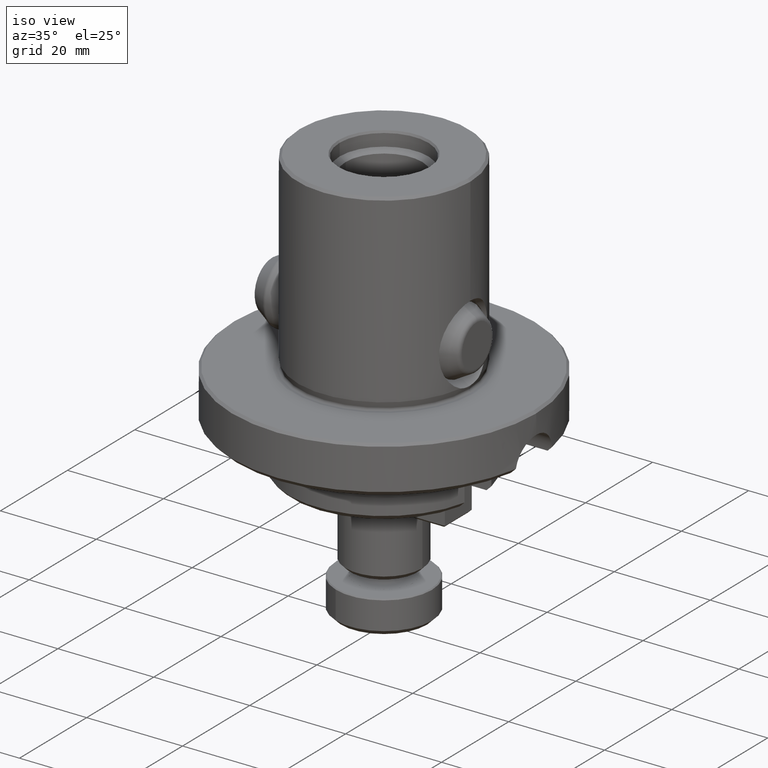
[diagram: clean part render]
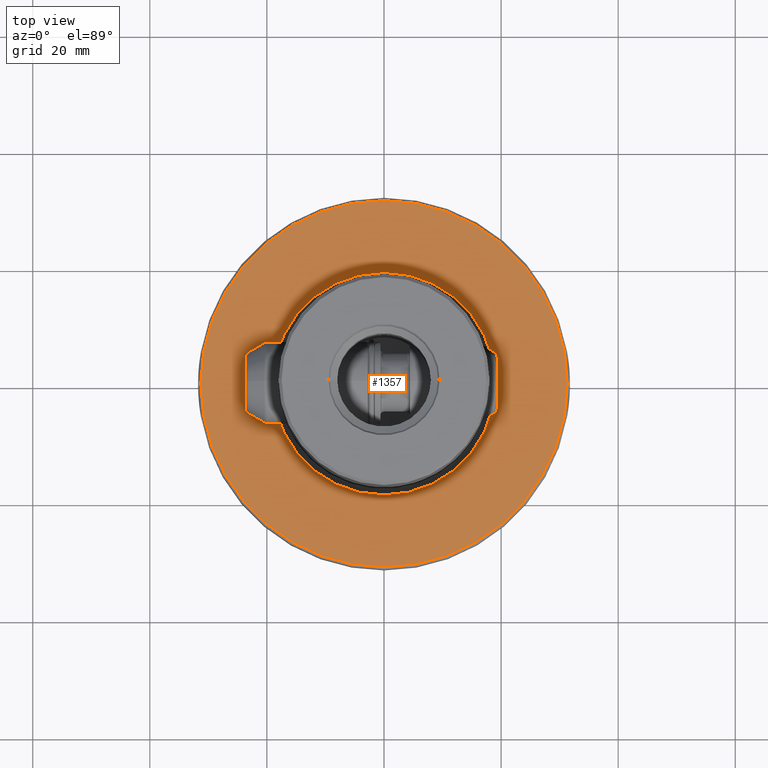
[diagram: tour spotlight — one face highlighted and labeled with its STEP entity id]
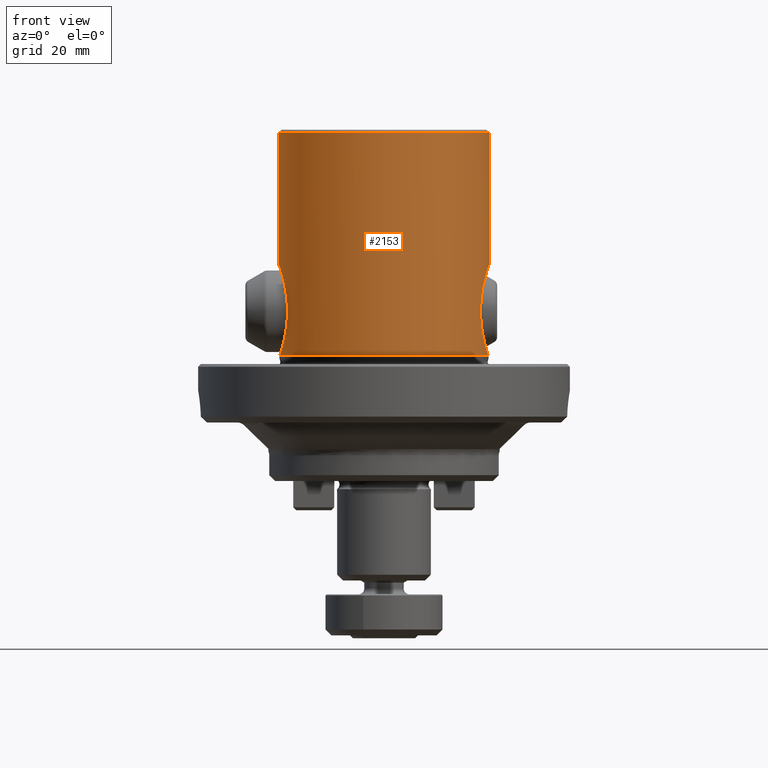
[diagram: tour spotlight — one face highlighted and labeled with its STEP entity id]
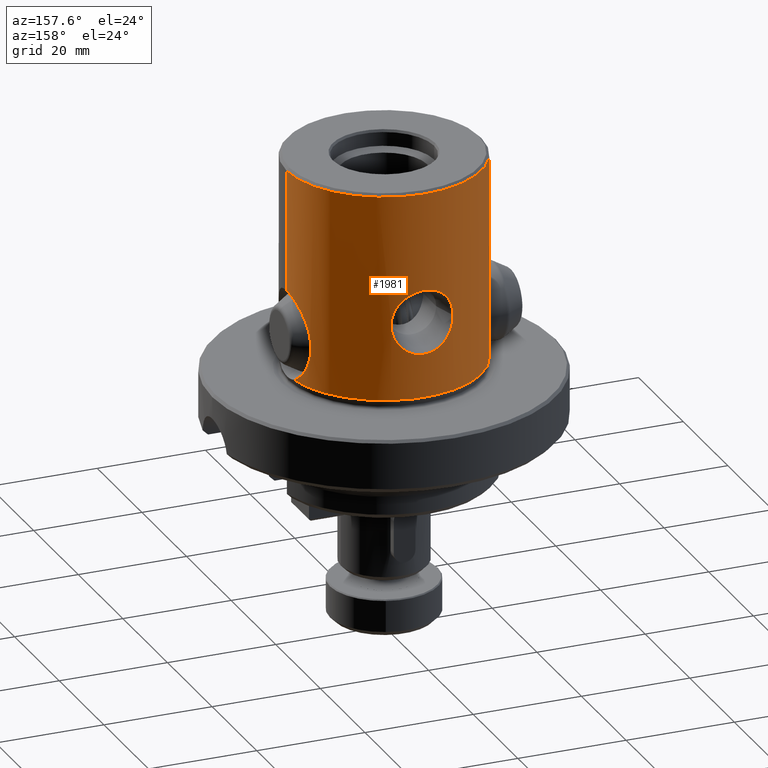
[diagram: tour spotlight — one face highlighted and labeled with its STEP entity id]
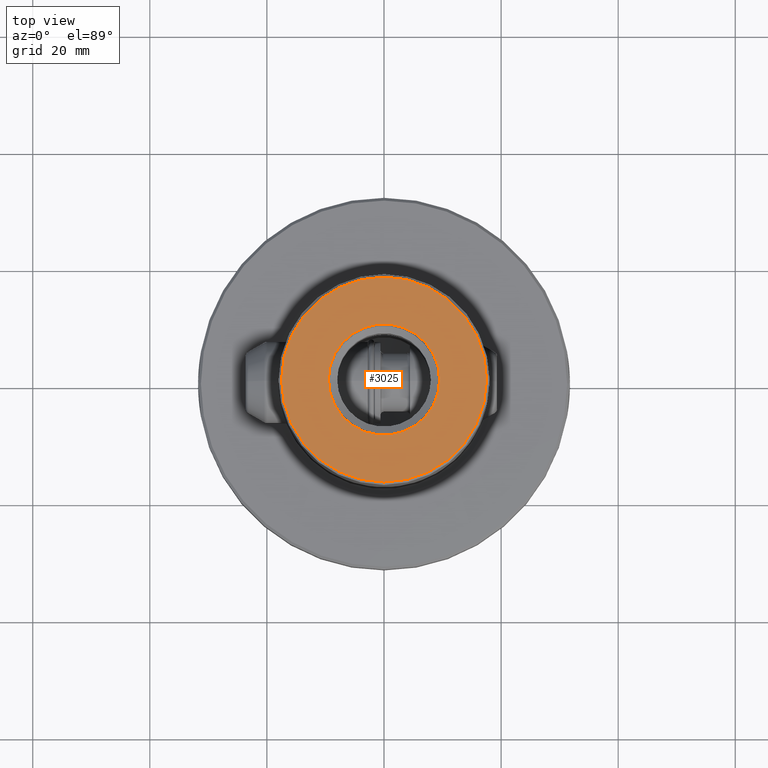
[diagram: tour spotlight — one face highlighted and labeled with its STEP entity id]
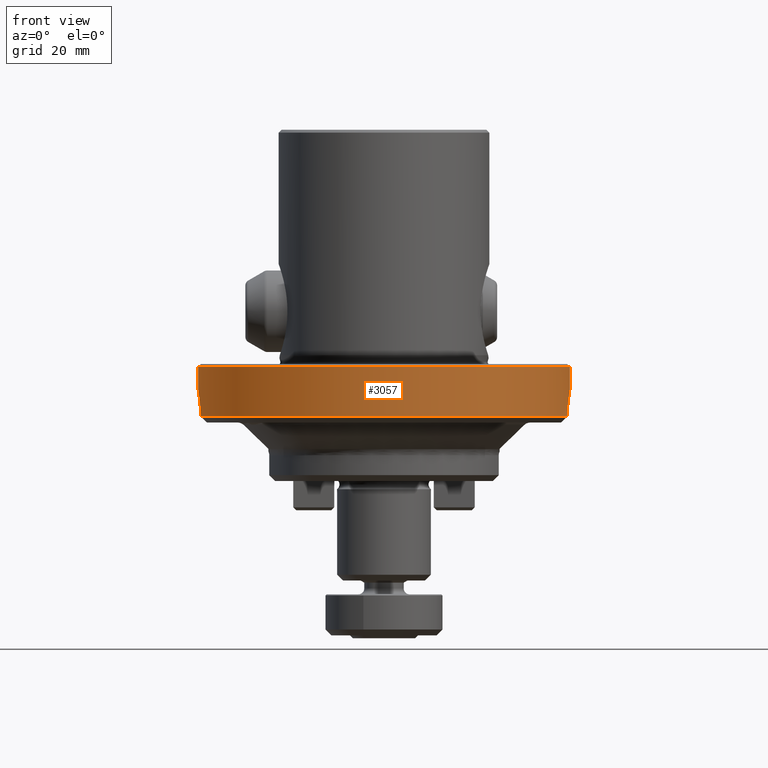
[diagram: tour spotlight — one face highlighted and labeled with its STEP entity id]
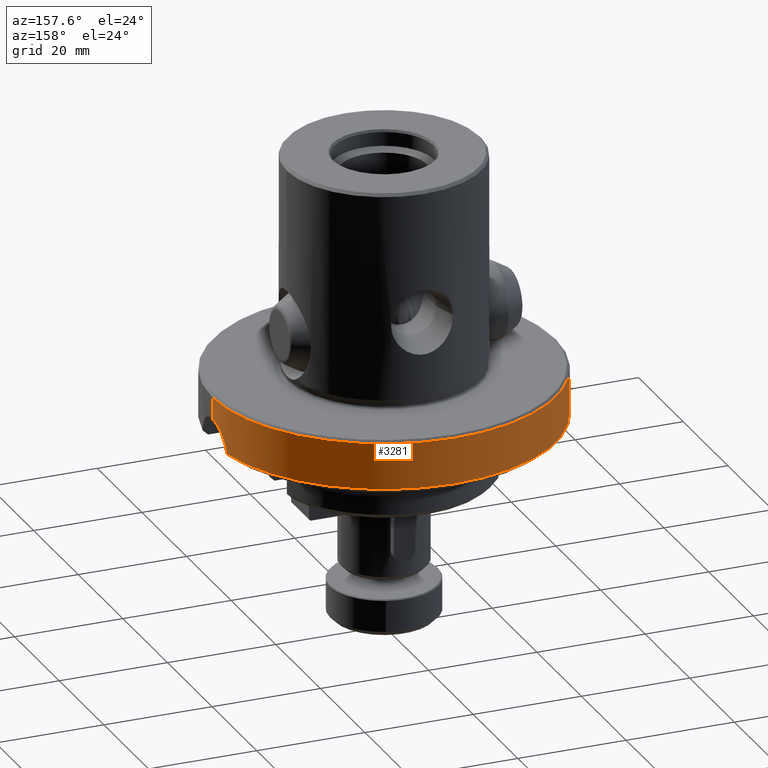
[diagram: tour spotlight — one face highlighted and labeled with its STEP entity id]
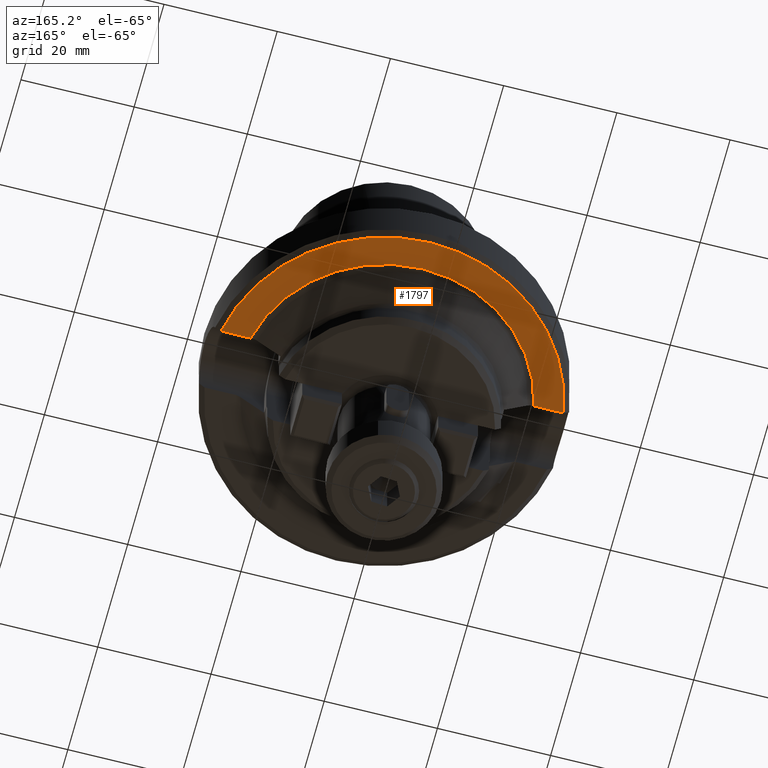
[diagram: tour spotlight — one face highlighted and labeled with its STEP entity id]
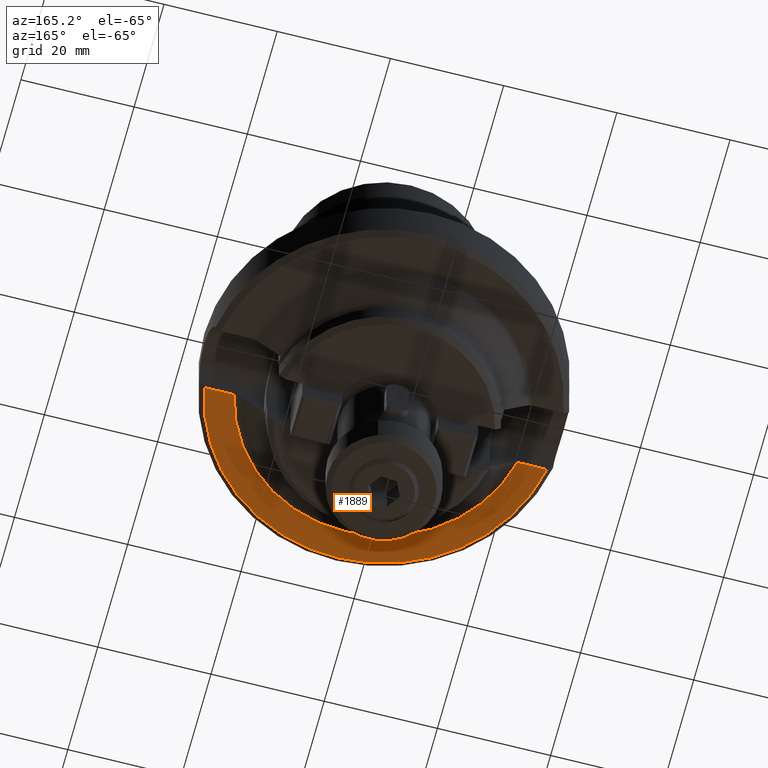
[diagram: tour spotlight — one face highlighted and labeled with its STEP entity id]
A machine part: a face-by-face anatomy tour. The part has 229 B-rep faces; the first image is the clean iso view, then the 8 largest visible faces are spotlighted one at a time (largest first), each with its STEP entity span.

Face 1 — top view, entity #1357. In plain terms, the highlighted planar face has unit normal (0, 0, -1).
Definition (entity closure, byte-faithful):
#1357=ADVANCED_FACE('NONE',(#3597,#3598),#3599,.F.);
#2247=VERTEX_POINT('NONE',#4587);
#2417=VERTEX_POINT('NONE',#4781);
#2475=VERTEX_POINT('NONE',#4848);
#2575=EDGE_CURVE('NONE',#2475,#2247,#4958,.T.);
#2647=VERTEX_POINT('NONE',#5040);
#2909=EDGE_CURVE('NONE',#2247,#2475,#5327,.T.);
#3151=EDGE_CURVE('NONE',#2417,#2647,#5596,.T.);
#3347=EDGE_CURVE('NONE',#2647,#2417,#5819,.T.);
#3597=FACE_OUTER_BOUND('',#6171,.T.);
#3598=FACE_BOUND('',#6172,.T.);
#3599=PLANE('',#6173);
#4587=CARTESIAN_POINT('',(-31.275,0.0,0.0));
#4781=CARTESIAN_POINT('',(19.0122364103075,0.0,0.0));
#4848=CARTESIAN_POINT('',(31.275,3.85904077248277E-015,0.0));
#4958=CIRCLE('',#8714,31.275);
#5040=CARTESIAN_POINT('',(-19.0122364103075,2.32825055084357E-015,0.0));
#5327=CIRCLE('',#9409,31.275);
#5596=CIRCLE('',#9809,19.0122364103075);
#5819=CIRCLE('',#10221,19.0122364103075);
#6171=EDGE_LOOP('',(#10457,#10458));
#6172=EDGE_LOOP('',(#10459,#10460));
#6173=AXIS2_PLACEMENT_3D('',#10461,#10462,#10463);
#8714=AXIS2_PLACEMENT_3D('',#12083,#12084,#12085);
#9409=AXIS2_PLACEMENT_3D('',#12520,#12521,#12522);
#9809=AXIS2_PLACEMENT_3D('',#12856,#12857,#12858);
#10221=AXIS2_PLACEMENT_3D('',#13134,#13135,#13136);
#10457=ORIENTED_EDGE('',*,*,#2909,.F.);
#10458=ORIENTED_EDGE('',*,*,#2575,.F.);
#10459=ORIENTED_EDGE('',*,*,#3151,.F.);
#10460=ORIENTED_EDGE('',*,*,#3347,.F.);
#10461=CARTESIAN_POINT('',(0.0,31.75,0.0));
#10462=DIRECTION('',(0.0,0.0,-1.0));
#10463=DIRECTION('',(0.0,1.0,0.0));
#12083=CARTESIAN_POINT('',(0.0,0.0,0.0));
#12084=DIRECTION('',(0.0,0.0,-1.0));
#12085=DIRECTION('',(-1.0,0.0,0.0));
#12520=CARTESIAN_POINT('',(0.0,0.0,0.0));
#12521=DIRECTION('',(0.0,0.0,-1.0));
#12522=DIRECTION('',(-1.0,0.0,0.0));
#12856=CARTESIAN_POINT('',(0.0,0.0,0.0));
#12857=DIRECTION('',(0.0,0.0,1.0));
#12858=DIRECTION('',(-1.0,0.0,0.0));
#13134=CARTESIAN_POINT('',(0.0,0.0,0.0));
#13135=DIRECTION('',(0.0,0.0,1.0));
#13136=DIRECTION('',(-1.0,0.0,0.0));

Face 2 — front view, entity #2153. In plain terms, the highlighted cylindrical surface (partial cylindrical patch) has radius 18 mm, axis along (-0, -0, 1).
Definition (entity closure, byte-faithful):
#1195=VERTEX_POINT('NONE',#3417);
#1561=EDGE_CURVE('NONE',#3131,#2721,#3821,.T.);
#1661=EDGE_CURVE('NONE',#2979,#3149,#3926,.T.);
#1781=VERTEX_POINT('NONE',#4065);
#1915=EDGE_CURVE('NONE',#3131,#1781,#4215,.T.);
#1939=EDGE_CURVE('NONE',#2721,#1195,#4241,.T.);
#2153=ADVANCED_FACE('NONE',(#4482),#4483,.T.);
#2721=VERTEX_POINT('NONE',#5125);
#2979=VERTEX_POINT('NONE',#5403);
#3033=EDGE_CURVE('NONE',#1195,#3149,#5463,.T.);
#3131=VERTEX_POINT('NONE',#5574);
#3149=VERTEX_POINT('NONE',#5594);
#3265=EDGE_CURVE('NONE',#2979,#1781,#5723,.T.);
#3417=CARTESIAN_POINT('',(18.0,0.0,39.5));
#3821=B_SPLINE_CURVE_WITH_KNOTS('',3,(#6596,#6597,#6598,#6599,#6600,#6601,#6602,#6603,#6604,#6605,#6606,#6607,#6608,#6609,#6610,#6611,#6612,#6613,#6614,#6615,#6616,#6617,#6618,#6619,#6620,#6621,#6622,#6623,#6624,#6625,#6626,#6627,#6628,#6629,#6630,#6631,#6632,#6633),.UNSPECIFIED.,.F.,.F.,(4,2,2,2,2,2,2,2,2,2,2,2,2,2,2,2,2,2,4),(0.0328172636496167,0.0341533887912805,0.0348214513621124,0.0354895139329443,0.0368256390746081,0.0381617642162719,0.0394978893579357,0.0408340144995995,0.0421701396412633,0.0435062647829271,0.0448423899245909,0.0461785150662547,0.0475146402079185,0.0488507653495823,0.0501868904912462,0.05152301563291,0.0528591407745738,0.0535272033454057,0.0541952659162376),.UNSPECIFIED.);
#3926=LINE('',#6904,#6905);
#4065=CARTESIAN_POINT('',(-17.804343093257,-2.64676538771197,1.48544149106436));
#4215=CIRCLE('',#7421,18.0);
#4241=LINE('',#7460,#7461);
#4482=FACE_OUTER_BOUND('',#7909,.T.);
#4483=CYLINDRICAL_SURFACE('',#7910,18.0);
#5125=CARTESIAN_POINT('',(18.0,8.53600510901965E-021,17.0800170173088));
#5403=CARTESIAN_POINT('',(-18.0,2.20429143672745E-015,17.0800170173088));
#5463=CIRCLE('',#9604,18.0);
#5574=CARTESIAN_POINT('',(17.804343093257,-2.64676538771198,1.48544149106436));
#5594=CARTESIAN_POINT('',(-18.0,2.20429143688028E-015,39.5));
#5723=B_SPLINE_CURVE_WITH_KNOTS('',3,(#10027,#10028,#10029,#10030,#10031,#10032,#10033,#10034,#10035,#10036,#10037,#10038,#10039,#10040,#10041,#10042,#10043,#10044,#10045,#10046,#10047,#10048,#10049,#10050,#10051,#10052,#10053,#10054,#10055,#10056,#10057,#10058,#10059,#10060,#10061,#10062,#10063,#10064,#10065,#10066,#10067,#10068),.UNSPECIFIED.,.F.,.F.,(4,2,2,2,2,2,2,2,2,2,2,2,2,2,2,2,2,2,2,2,4),(0.0423505653042994,0.0436910361967238,0.044361271642936,0.0450315070891481,0.0457017425353603,0.0463719779815725,0.0477124488739968,0.0490529197664211,0.0503933906588455,0.0517338615512698,0.0530743324436942,0.0544148033361185,0.0557552742285428,0.0570957451209672,0.0584362160133915,0.0591064514596037,0.0597766869058159,0.0611171577982402,0.0617873932444524,0.0624576286906646,0.063798099583089),.UNSPECIFIED.);
#6596=CARTESIAN_POINT('',(17.804343093257,-2.64676538771198,1.48544149106436));
#6597=CARTESIAN_POINT('',(17.7437444575994,-3.05440216021936,1.66611203257709));
#6598=CARTESIAN_POINT('',(17.6722912819852,-3.43931163528017,1.88445635984524));
#6599=CARTESIAN_POINT('',(17.5542332319831,-3.98542112669638,2.26508764913992));
#6600=CARTESIAN_POINT('',(17.5129362596285,-4.16262195820197,2.40133494297255));
#6601=CARTESIAN_POINT('',(17.4290760110821,-4.50085185277642,2.68657834819552));
#6602=CARTESIAN_POINT('',(17.386360907426,-4.662649062039,2.83604299216638));
#6603=CARTESIAN_POINT('',(17.2572877302605,-5.12731778915756,3.30416423296001));
#6604=CARTESIAN_POINT('',(17.1698127695481,-5.41016331820726,3.64314792815209));
#6605=CARTESIAN_POINT('',(17.0005060514856,-5.92073742572787,4.37028866876463));
#6606=CARTESIAN_POINT('',(16.9204355987016,-6.14338244050196,4.75092689163881));
#6607=CARTESIAN_POINT('',(16.7756666903962,-6.52834556015589,5.5450096948538));
#6608=CARTESIAN_POINT('',(16.7107595700963,-6.69108092549889,5.95996102399701));
#6609=CARTESIAN_POINT('',(16.6034282040785,-6.95314470100776,6.81805850656303));
#6610=CARTESIAN_POINT('',(16.5619958110133,-7.05019425746376,7.25295051267432));
#6611=CARTESIAN_POINT('',(16.5064089506085,-7.17937377960433,8.13414372090263));
#6612=CARTESIAN_POINT('',(16.4922505476307,-7.21149603580225,8.58044582571773));
#6613=CARTESIAN_POINT('',(16.4936836385412,-7.20821775697247,9.48500358318716));
#6614=CARTESIAN_POINT('',(16.5093201760162,-7.17271278779453,9.93254430864302));
#6615=CARTESIAN_POINT('',(16.5676596459575,-7.0369109178758,10.8129525999323));
#6616=CARTESIAN_POINT('',(16.6103674154364,-6.93661701040981,11.2467806041822));
#6617=CARTESIAN_POINT('',(16.7197980988396,-6.66853152942512,12.1014459335719));
#6618=CARTESIAN_POINT('',(16.7858219007469,-6.50228064934469,12.51603287325));
#6619=CARTESIAN_POINT('',(16.9319312295929,-6.11172441809785,13.3059276543521));
#6620=CARTESIAN_POINT('',(17.0123453047171,-5.88670479221077,13.6836923116285));
#6621=CARTESIAN_POINT('',(17.1815688000272,-5.37279067594269,14.4037362218238));
#6622=CARTESIAN_POINT('',(17.2703400538593,-5.08329442914027,14.7451345924122));
#6623=CARTESIAN_POINT('',(17.4417488988358,-4.45981201164653,15.3625614837354));
#6624=CARTESIAN_POINT('',(17.5252550217945,-4.12351249469231,15.6423691061109));
#6625=CARTESIAN_POINT('',(17.6804206690177,-3.39715231324559,16.1407555858179));
#6626=CARTESIAN_POINT('',(17.752354621923,-3.00357938741744,16.3599538408155));
#6627=CARTESIAN_POINT('',(17.8705487130588,-2.19341570460872,16.7114999336486));
#6628=CARTESIAN_POINT('',(17.9177827685464,-1.77329804319457,16.8470332871744));
#6629=CARTESIAN_POINT('',(17.9665380006864,-1.11865704869607,16.9858076088279));
#6630=CARTESIAN_POINT('',(17.9791457146982,-0.894756216237974,17.0213708440475));
#6631=CARTESIAN_POINT('',(17.9958543005718,-0.446651216767152,17.0684095993487));
#6632=CARTESIAN_POINT('',(18.0,-0.223087283050567,17.0800170173088));
#6633=CARTESIAN_POINT('',(18.0,8.53600510901965E-021,17.0800170173088));
#6904=CARTESIAN_POINT('',(-18.0,2.20429143688028E-015,40.0));
#6905=VECTOR('',#10778,1000.0);
#7421=AXIS2_PLACEMENT_3D('',#11162,#11163,#11164);
#7460=CARTESIAN_POINT('',(18.0,0.0,40.0));
#7461=VECTOR('',#11184,1000.0);
#7909=EDGE_LOOP('',(#11491,#11492,#11493,#11494,#11495,#11496));
#7910=AXIS2_PLACEMENT_3D('',#11497,#11498,#11499);
#9604=AXIS2_PLACEMENT_3D('',#12678,#12679,#12680);
#10027=CARTESIAN_POINT('',(-18.0,2.20429143672745E-015,17.0800170173088));
#10028=CARTESIAN_POINT('',(-18.0,-0.449532284128728,17.0800170173088));
#10029=CARTESIAN_POINT('',(-17.9831854470288,-0.894432161072405,17.03318764433));
#10030=CARTESIAN_POINT('',(-17.9340713820658,-1.55493588009812,16.8933985109919));
#10031=CARTESIAN_POINT('',(-17.9135988209318,-1.77456985074699,16.834796932722));
#10032=CARTESIAN_POINT('',(-17.8661609024974,-2.20145758045521,16.6972470698766));
#10033=CARTESIAN_POINT('',(-17.8391276646064,-2.40997328547699,16.6181083790395));
#10034=CARTESIAN_POINT('',(-17.7792925083201,-2.81765948518116,16.4400060590332));
#10035=CARTESIAN_POINT('',(-17.7464889182629,-3.01682864225033,16.3410398745958));
#10036=CARTESIAN_POINT('',(-17.6759090931639,-3.40607717366099,16.1236113756841));
#10037=CARTESIAN_POINT('',(-17.6379910477407,-3.5966933391674,16.0046720465679));
#10038=CARTESIAN_POINT('',(-17.5202626627993,-4.14489094323174,15.6259033067514));
#10039=CARTESIAN_POINT('',(-17.4359573118569,-4.48244917375162,15.342726041218));
#10040=CARTESIAN_POINT('',(-17.2633623459598,-5.10698330604871,14.7188954355043));
#10041=CARTESIAN_POINT('',(-17.1747944380222,-5.39426132818622,14.3765765310996));
#10042=CARTESIAN_POINT('',(-17.0068386722515,-5.90246199827612,13.6584704861439));
#10043=CARTESIAN_POINT('',(-16.9266592175734,-6.12629361743969,13.2800983131534));
#10044=CARTESIAN_POINT('',(-16.7805697555103,-6.51580727426742,12.4847676875533));
#10045=CARTESIAN_POINT('',(-16.7147293109781,-6.6811610033201,12.0665439132079));
#10046=CARTESIAN_POINT('',(-16.6074475137994,-6.94354199007625,11.2189299108377));
#10047=CARTESIAN_POINT('',(-16.565306382895,-7.04243534110386,10.7862140548888));
#10048=CARTESIAN_POINT('',(-16.507957548481,-7.17583505038684,9.90262461122665));
#10049=CARTESIAN_POINT('',(-16.4929748132012,-7.20983923663643,9.44884833767323));
#10050=CARTESIAN_POINT('',(-16.4929076436235,-7.20999288945108,8.55425346221535));
#10051=CARTESIAN_POINT('',(-16.5074216278891,-7.17705945741435,8.11002172409011));
#10052=CARTESIAN_POINT('',(-16.5641306830992,-7.04519169145675,7.22764089360167));
#10053=CARTESIAN_POINT('',(-16.6069061153572,-6.94484118384475,6.78591080912648));
#10054=CARTESIAN_POINT('',(-16.7143693941983,-6.68206596401146,5.93574119578572));
#10055=CARTESIAN_POINT('',(-16.7789427765968,-6.51994740817649,5.52522053269945));
#10056=CARTESIAN_POINT('',(-16.8878043257057,-6.22998585737571,4.93089168883426));
#10057=CARTESIAN_POINT('',(-16.9260936493413,-6.12549146474925,4.7363757966206));
#10058=CARTESIAN_POINT('',(-17.0059629930933,-5.90012835356388,4.3547068630629));
#10059=CARTESIAN_POINT('',(-17.0475477616526,-5.77919020808276,4.16765250843405));
#10060=CARTESIAN_POINT('',(-17.1736655500411,-5.39786144351949,3.62790294503467));
#10061=CARTESIAN_POINT('',(-17.2602917485638,-5.11712179139402,3.29285145691146));
#10062=CARTESIAN_POINT('',(-17.3886461450791,-4.65409893637874,2.82797322554881));
#10063=CARTESIAN_POINT('',(-17.4311684123279,-4.49273084927222,2.67933520808764));
#10064=CARTESIAN_POINT('',(-17.5147447319635,-4.15499454597684,2.39531562342552));
#10065=CARTESIAN_POINT('',(-17.5560048732276,-3.97759707834166,2.259292810746));
#10066=CARTESIAN_POINT('',(-17.6736572485829,-3.43222696879277,1.88022341331155));
#10067=CARTESIAN_POINT('',(-17.7444598426438,-3.04958988602489,1.66397916272028));
#10068=CARTESIAN_POINT('',(-17.804343093257,-2.64676538771197,1.48544149106436));
#10778=DIRECTION('',(-0.0,0.0,1.0));
#11162=CARTESIAN_POINT('',(0.0,0.0,1.48544149106436));
#11163=DIRECTION('',(0.0,0.0,-1.0));
#11164=DIRECTION('',(1.0,0.0,0.0));
#11184=DIRECTION('',(-0.0,0.0,1.0));
#11491=ORIENTED_EDGE('',*,*,#1661,.F.);
#11492=ORIENTED_EDGE('',*,*,#3265,.T.);
#11493=ORIENTED_EDGE('',*,*,#1915,.F.);
#11494=ORIENTED_EDGE('',*,*,#1561,.T.);
#11495=ORIENTED_EDGE('',*,*,#1939,.T.);
#11496=ORIENTED_EDGE('',*,*,#3033,.T.);
#11497=CARTESIAN_POINT('',(0.0,0.0,40.0));
#11498=DIRECTION('',(-0.0,-0.0,1.0));
#11499=DIRECTION('',(1.0,0.0,0.0));
#12678=CARTESIAN_POINT('',(0.0,0.0,39.5));
#12679=DIRECTION('',(0.0,0.0,-1.0));
#12680=DIRECTION('',(-1.0,0.0,0.0));

Face 3 — auxiliary view, entity #1981. In plain terms, the highlighted cylindrical surface (partial cylindrical patch) has radius 18 mm, axis along (-0, -0, 1).
Definition (entity closure, byte-faithful):
#1195=VERTEX_POINT('NONE',#3417);
#1449=VERTEX_POINT('NONE',#3700);
#1467=EDGE_CURVE('NONE',#1535,#1449,#3720,.T.);
#1535=VERTEX_POINT('NONE',#3792);
#1661=EDGE_CURVE('NONE',#2979,#3149,#3926,.T.);
#1713=EDGE_CURVE('NONE',#2091,#2979,#3988,.T.);
#1843=EDGE_CURVE('NONE',#2091,#3317,#4134,.T.);
#1939=EDGE_CURVE('NONE',#2721,#1195,#4241,.T.);
#1975=EDGE_CURVE('NONE',#2721,#3317,#4282,.T.);
#1981=ADVANCED_FACE('NONE',(#4288,#4289),#4290,.T.);
#2091=VERTEX_POINT('NONE',#4412);
#2107=EDGE_CURVE('NONE',#1449,#1535,#4431,.T.);
#2721=VERTEX_POINT('NONE',#5125);
#2979=VERTEX_POINT('NONE',#5403);
#3149=VERTEX_POINT('NONE',#5594);
#3159=EDGE_CURVE('NONE',#3149,#1195,#5606,.T.);
#3317=VERTEX_POINT('NONE',#5784);
#3417=CARTESIAN_POINT('',(18.0,0.0,39.5));
#3700=CARTESIAN_POINT('',(5.72860766398983,17.064086680279,15.5));
#3720=B_SPLINE_CURVE_WITH_KNOTS('',3,(#6399,#6400,#6401,#6402,#6403,#6404,#6405,#6406,#6407,#6408,#6409,#6410,#6411,#6412,#6413,#6414,#6415,#6416,#6417,#6418,#6419,#6420,#6421,#6422,#6423,#6424,#6425,#6426,#6427,#6428,#6429,#6430,#6431,#6432,#6433,#6434,#6435,#6436,#6437,#6438,#6439),.UNSPECIFIED.,.F.,.F.,(4,2,2,2,2,2,2,2,2,2,1,2,2,2,2,2,2,2,2,2,4),(0.0324181290857824,0.0335691108776089,0.0347200926694353,0.0358710744612617,0.0364465653571749,0.0370220562530882,0.0381730380449146,0.039324019836741,0.0404750016285674,0.0410504925244806,0.0416259834203939,0.0422014743163071,0.0427769652122203,0.0439279470040467,0.0450789287958731,0.0462299105876996,0.047380892379526,0.0479563832754392,0.0485318741713524,0.0496828559631789,0.0508338377550053),.UNSPECIFIED.);
#3792=CARTESIAN_POINT('',(-5.72860766398983,17.0640866802791,15.5));
#3926=LINE('',#6904,#6905);
#3988=B_SPLINE_CURVE_WITH_KNOTS('',3,(#7033,#7034,#7035,#7036,#7037,#7038,#7039,#7040,#7041,#7042,#7043,#7044,#7045,#7046,#7047,#7048,#7049,#7050,#7051,#7052,#7053,#7054,#7055,#7056,#7057,#7058,#7059,#7060,#7061,#7062,#7063,#7064,#7065,#7066,#7067,#7068,#7069,#7070,#7071,#7072),.UNSPECIFIED.,.F.,.F.,(4,2,2,2,2,2,2,2,2,2,2,2,2,2,2,2,2,2,2,4),(0.0209192149140883,0.0222586743134765,0.0235981337128647,0.0249375931122529,0.0262770525116411,0.0276165119110293,0.0289559713104175,0.0302954307098057,0.0316348901091939,0.0329743495085821,0.0343138089079703,0.0356532683073585,0.0363229980070526,0.0369927277067467,0.0383321871061349,0.039001916805829,0.039671646505523,0.0410111059049112,0.0416808356046054,0.0423505653042994),.UNSPECIFIED.);
#4134=CIRCLE('',#7300,18.0);
#4241=LINE('',#7460,#7461);
#4282=B_SPLINE_CURVE_WITH_KNOTS('',3,(#7524,#7525,#7526,#7527,#7528,#7529,#7530,#7531,#7532,#7533,#7534,#7535,#7536,#7537,#7538,#7539,#7540,#7541,#7542,#7543,#7544,#7545,#7546,#7547,#7548,#7549,#7550,#7551,#7552,#7553,#7554,#7555,#7556,#7557,#7558,#7559,#7560,#7561),.UNSPECIFIED.,.F.,.F.,(4,2,2,2,2,2,2,2,2,2,2,2,2,2,2,2,2,2,4),(0.00599003677657072,0.0073276405191072,0.00866524426164368,0.0100028480041802,0.0113404517467166,0.0126780554892531,0.0140156592317896,0.0166908667168626,0.018028470459399,0.0193660742019355,0.0200348760732037,0.020703677944472,0.0220412816870085,0.0227100835582767,0.0233788854295449,0.0247164891720814,0.0253852910433497,0.0260540929146179,0.0273916966571544),.UNSPECIFIED.);
#4288=FACE_OUTER_BOUND('',#7571,.T.);
#4289=FACE_BOUND('',#7572,.T.);
#4290=CYLINDRICAL_SURFACE('',#7573,18.0);
#4412=CARTESIAN_POINT('',(-17.804343093257,2.64676538771197,1.48544149106436));
#4431=B_SPLINE_CURVE_WITH_KNOTS('',3,(#7758,#7759,#7760,#7761,#7762,#7763,#7764,#7765,#7766,#7767,#7768,#7769,#7770,#7771,#7772,#7773,#7774,#7775,#7776,#7777,#7778,#7779,#7780,#7781,#7782,#7783,#7784,#7785,#7786,#7787,#7788,#7789,#7790,#7791,#7792,#7793,#7794,#7795,#7796,#7797,#7798,#7799,#7800,#7801,#7802),.UNSPECIFIED.,.F.,.F.,(4,2,2,2,2,2,2,2,2,2,2,2,1,2,2,2,2,2,2,2,2,2,4),(0.0139958650551116,0.0151472565570286,0.015722952307987,0.0162986480589455,0.0174500395608624,0.0186014310627794,0.0191771268137378,0.0197528225646963,0.0209042140666132,0.0220556055685301,0.0232069970704471,0.0237826928214055,0.024358388572364,0.0249340843233224,0.0255097800742809,0.0266611715761978,0.0272368673271563,0.0278125630781148,0.0283882588290732,0.0289639545800317,0.0301153460819486,0.0312667375838655,0.0324181290857824),.UNSPECIFIED.);
#5125=CARTESIAN_POINT('',(18.0,8.53600510901965E-021,17.0800170173088));
#5403=CARTESIAN_POINT('',(-18.0,2.20429143672745E-015,17.0800170173088));
#5594=CARTESIAN_POINT('',(-18.0,2.20429143688028E-015,39.5));
#5606=CIRCLE('',#9820,18.0);
#5784=CARTESIAN_POINT('',(17.804343093257,2.64676538771197,1.48544149106436));
#6399=CARTESIAN_POINT('',(-5.72860766398983,17.0640866802791,15.5));
#6400=CARTESIAN_POINT('',(-5.72860766398983,17.0640866802791,15.8854121907871));
#6401=CARTESIAN_POINT('',(-5.69215038779191,17.076445500352,16.2754555447811));
#6402=CARTESIAN_POINT('',(-5.55038952298575,17.1230471326473,17.0291784922072));
#6403=CARTESIAN_POINT('',(-5.44539591953446,17.1571903711619,17.3972544090195));
#6404=CARTESIAN_POINT('',(-5.16504681958713,17.2436599799533,18.1155979663764));
#6405=CARTESIAN_POINT('',(-4.99210571300113,17.2951680005943,18.4585642043972));
#6406=CARTESIAN_POINT('',(-4.68896137731568,17.3788558342223,18.9409351945091));
#6407=CARTESIAN_POINT('',(-4.5803742878751,17.4078887753267,19.0968489403871));
#6408=CARTESIAN_POINT('',(-4.34770875304212,17.4674511257336,19.3987983045587));
#6409=CARTESIAN_POINT('',(-4.22289694324471,17.4981482279224,19.5455701478436));
#6410=CARTESIAN_POINT('',(-3.8303994987248,17.5897765670462,19.9636947759355));
#6411=CARTESIAN_POINT('',(-3.54516979141796,17.6502313606252,20.2135040262341));
#6412=CARTESIAN_POINT('',(-2.92646153621304,17.7632969577904,20.6554545896568));
#6413=CARTESIAN_POINT('',(-2.5889650675446,17.816314461341,20.8488156448775));
#6414=CARTESIAN_POINT('',(-1.89072690160258,17.9038809449212,21.1583172941291));
#6415=CARTESIAN_POINT('',(-1.52809551778285,17.9389955986615,21.2767877948138));
#6416=CARTESIAN_POINT('',(-0.96274161900113,17.9752270729777,21.3977932825464));
#6417=CARTESIAN_POINT('',(-0.7697047107021,17.9845616104687,21.4286101798463));
#6418=CARTESIAN_POINT('',(-0.385706528405208,17.9968922910698,21.4692201992943));
#6419=CARTESIAN_POINT('',(-0.00192390553090262,18.0030642647076,21.4894073594712));
#6420=CARTESIAN_POINT('',(0.381435074770861,17.996978760759,21.4695034549815));
#6421=CARTESIAN_POINT('',(0.76457996860089,17.9847756367181,21.4293165441945));
#6422=CARTESIAN_POINT('',(0.957224945841079,17.9755291213116,21.3987955899906));
#6423=CARTESIAN_POINT('',(1.52470143822351,17.9393141640509,21.2778644325458));
#6424=CARTESIAN_POINT('',(1.88857746709879,17.9041296601793,21.1591844185779));
#6425=CARTESIAN_POINT('',(2.58902431524085,17.8163278155976,20.848874763255));
#6426=CARTESIAN_POINT('',(2.92601294522139,17.7633747214886,20.655751611046));
#6427=CARTESIAN_POINT('',(3.54515208262168,17.6502388075262,20.2135400706262));
#6428=CARTESIAN_POINT('',(3.83187496037504,17.5894689082248,19.9624484108803));
#6429=CARTESIAN_POINT('',(4.35693313934606,17.4668204263004,19.4024540326997));
#6430=CARTESIAN_POINT('',(4.58834533819629,17.4066392788371,19.1011587918295));
#6431=CARTESIAN_POINT('',(4.89165359438166,17.3228960077147,18.6183455356681));
#6432=CARTESIAN_POINT('',(4.98539418474849,17.2960668576454,18.4522222198389));
#6433=CARTESIAN_POINT('',(5.15793002444585,17.2454005979676,18.10930693514));
#6434=CARTESIAN_POINT('',(5.2366277418017,17.2215862499952,17.93241796718));
#6435=CARTESIAN_POINT('',(5.44538614823855,17.1571845588225,17.3968082476174));
#6436=CARTESIAN_POINT('',(5.55033152101227,17.1230664127526,17.0295706125262));
#6437=CARTESIAN_POINT('',(5.69230097906624,17.076395782846,16.2745710853118));
#6438=CARTESIAN_POINT('',(5.72860766398983,17.064086680279,15.884218816964));
#6439=CARTESIAN_POINT('',(5.72860766398983,17.064086680279,15.5));
#6904=CARTESIAN_POINT('',(-18.0,2.20429143688028E-015,40.0));
#6905=VECTOR('',#10778,1000.0);
#7033=CARTESIAN_POINT('',(-17.804343093257,2.64676538771197,1.48544149106436));
#7034=CARTESIAN_POINT('',(-17.7433386908421,3.05713168456496,1.66732179743361));
#7035=CARTESIAN_POINT('',(-17.6717306665409,3.44199183331901,1.8862443408451));
#7036=CARTESIAN_POINT('',(-17.5150637324848,4.1665231282681,2.39139368991131));
#7037=CARTESIAN_POINT('',(-17.429263812792,4.50826648229476,2.6803958795304));
#7038=CARTESIAN_POINT('',(-17.2568506125031,5.12882156728383,3.30579702744187));
#7039=CARTESIAN_POINT('',(-17.1698397573161,5.41000698886052,3.6431760182783));
#7040=CARTESIAN_POINT('',(-17.0014750263649,5.91788981304343,4.36598395452532));
#7041=CARTESIAN_POINT('',(-16.9202755898242,6.14382412480841,4.75170961943586));
#7042=CARTESIAN_POINT('',(-16.7754750266129,6.52883898895238,5.54615618401007));
#7043=CARTESIAN_POINT('',(-16.7111160738901,6.69017855091145,5.9578584602763));
#7044=CARTESIAN_POINT('',(-16.6042357918918,6.95120444565992,6.81086244586312));
#7045=CARTESIAN_POINT('',(-16.5620115966905,7.0501580617162,7.25259624342691));
#7046=CARTESIAN_POINT('',(-16.5063540914024,7.17950077883806,8.13511747807436));
#7047=CARTESIAN_POINT('',(-16.4923578698293,7.21125052621831,8.57973395439264));
#7048=CARTESIAN_POINT('',(-16.4935617576729,7.20849657031436,9.47577056664033));
#7049=CARTESIAN_POINT('',(-16.5091660919233,7.17306875113836,9.92972309694919));
#7050=CARTESIAN_POINT('',(-16.567608644656,7.03703234018347,10.8126771058935));
#7051=CARTESIAN_POINT('',(-16.6102821610932,6.93679237605055,11.245386593994));
#7052=CARTESIAN_POINT('',(-16.7186888823563,6.67128203530171,12.0935030266524));
#7053=CARTESIAN_POINT('',(-16.7851041266434,6.50415156489058,12.5118885308949));
#7054=CARTESIAN_POINT('',(-16.931643419161,6.1125411448686,13.304633811474));
#7055=CARTESIAN_POINT('',(-17.0119281123323,5.88780893351022,13.6816183283563));
#7056=CARTESIAN_POINT('',(-17.1378783237751,5.50555397699917,14.2179803792184));
#7057=CARTESIAN_POINT('',(-17.1807845910301,5.37056580034166,14.3918877066155));
#7058=CARTESIAN_POINT('',(-17.267592739349,5.08454296541603,14.7295615087826));
#7059=CARTESIAN_POINT('',(-17.31142870261,4.93362762193803,14.89300235213));
#7060=CARTESIAN_POINT('',(-17.4404224644569,4.46504705588403,15.3580489854463));
#7061=CARTESIAN_POINT('',(-17.5239415664024,4.12894350689577,15.6379962463303));
#7062=CARTESIAN_POINT('',(-17.6400192333076,3.58662753502423,16.0110624369827));
#7063=CARTESIAN_POINT('',(-17.677176895944,3.3994574238089,16.1275597334814));
#7064=CARTESIAN_POINT('',(-17.7474160217713,3.01133165509207,16.3438517964003));
#7065=CARTESIAN_POINT('',(-17.7806206552348,2.80930279286648,16.4439972915223));
#7066=CARTESIAN_POINT('',(-17.8702857480854,2.19624669635731,16.7107735619919));
#7067=CARTESIAN_POINT('',(-17.9176191319791,1.77462981052516,16.8465620636818));
#7068=CARTESIAN_POINT('',(-17.9663250315383,1.12194538275606,16.9852041284789));
#7069=CARTESIAN_POINT('',(-17.9788408562157,0.900988371910374,17.0205110904897));
#7070=CARTESIAN_POINT('',(-17.9957304336674,0.451868053998719,17.0680623484409));
#7071=CARTESIAN_POINT('',(-18.0,0.22459653794335,17.0800170173088));
#7072=CARTESIAN_POINT('',(-18.0,2.20429143672745E-015,17.0800170173088));
#7300=AXIS2_PLACEMENT_3D('',#11070,#11071,#11072);
#7460=CARTESIAN_POINT('',(18.0,0.0,40.0));
#7461=VECTOR('',#11184,1000.0);
#7524=CARTESIAN_POINT('',(18.0,8.53600510901965E-021,17.0800170173088));
#7525=CARTESIAN_POINT('',(18.0,0.446668317833083,17.0800170173088));
#7526=CARTESIAN_POINT('',(17.9833676439074,0.89181205361602,17.0337051536375));
#7527=CARTESIAN_POINT('',(17.9175935596395,1.77670526156504,16.8465001648662));
#7528=CARTESIAN_POINT('',(17.8697017710781,2.20076072721564,16.7090645309619));
#7529=CARTESIAN_POINT('',(17.7503574236814,3.01569237444522,16.3539278659984));
#7530=CARTESIAN_POINT('',(17.6781580587956,3.40899115093411,16.1337568014171));
#7531=CARTESIAN_POINT('',(17.5221513123086,4.13675070646826,15.6321220682217));
#7532=CARTESIAN_POINT('',(17.437983423297,4.47467209977876,15.3497554156376));
#7533=CARTESIAN_POINT('',(17.2647961552577,5.10223186352001,14.7243658506985));
#7534=CARTESIAN_POINT('',(17.1769617811598,5.3873704328791,14.3852204935148));
#7535=CARTESIAN_POINT('',(17.0090179668046,5.89619233212436,13.6683949382677));
#7536=CARTESIAN_POINT('',(16.9283544992003,6.12167490155118,13.2887686481633));
#7537=CARTESIAN_POINT('',(16.7072403193612,6.71151842094012,12.0866587086983));
#7538=CARTESIAN_POINT('',(16.5949847106844,6.97338523350817,11.240561475862));
#7539=CARTESIAN_POINT('',(16.5078854974417,7.17601011663486,9.90296113476767));
#7540=CARTESIAN_POINT('',(16.4931351186935,7.20947253177145,9.45494174821796));
#7541=CARTESIAN_POINT('',(16.4927510501938,7.21035110283671,8.56284365411167));
#7542=CARTESIAN_POINT('',(16.5070277836197,7.17796895366757,8.1174252252896));
#7543=CARTESIAN_POINT('',(16.54978244596,7.07855932578423,7.45026690959342));
#7544=CARTESIAN_POINT('',(16.5676321606771,7.03679318469409,7.22799965061736));
#7545=CARTESIAN_POINT('',(16.6093951148458,6.93764280246507,6.79185469001753));
#7546=CARTESIAN_POINT('',(16.6333635853078,6.88013096181156,6.57693832720394));
#7547=CARTESIAN_POINT('',(16.7135656635661,6.68406071640208,5.94143116611566));
#7548=CARTESIAN_POINT('',(16.7781004189015,6.52215662151048,5.53001776782705));
#7549=CARTESIAN_POINT('',(16.8876734774143,6.23035148974776,4.93150760699726));
#7550=CARTESIAN_POINT('',(16.9264750431089,6.12443512791166,4.73448909488459));
#7551=CARTESIAN_POINT('',(17.0062510863744,5.89929546710243,4.35339485036975));
#7552=CARTESIAN_POINT('',(17.0473388831798,5.77979089309621,4.16860480586671));
#7553=CARTESIAN_POINT('',(17.1728550219361,5.40037345552409,3.63125592575354));
#7554=CARTESIAN_POINT('',(17.2595502046021,5.11975795075693,3.29556333563188));
#7555=CARTESIAN_POINT('',(17.3887848714146,4.65361788080453,2.8274577519958));
#7556=CARTESIAN_POINT('',(17.4319487906876,4.48973437029712,2.67662141158931));
#7557=CARTESIAN_POINT('',(17.5158514132511,4.15036174638924,2.39161798243767));
#7558=CARTESIAN_POINT('',(17.5564914024914,3.97538019101962,2.25771670676456));
#7559=CARTESIAN_POINT('',(17.6731848703034,3.43433962439748,1.88176251245699));
#7560=CARTESIAN_POINT('',(17.7440503925251,3.05234418772,1.66519990925815));
#7561=CARTESIAN_POINT('',(17.804343093257,2.64676538771197,1.48544149106436));
#7571=EDGE_LOOP('',(#11245,#11246,#11247,#11248,#11249,#11250));
#7572=EDGE_LOOP('',(#11251,#11252));
#7573=AXIS2_PLACEMENT_3D('',#11253,#11254,#11255);
#7758=CARTESIAN_POINT('',(5.72860766398983,17.064086680279,15.5));
#7759=CARTESIAN_POINT('',(5.72860766398983,17.0640866802791,15.1156444142988));
#7760=CARTESIAN_POINT('',(5.69345036717081,17.0760127607151,14.7335935552291));
#7761=CARTESIAN_POINT('',(5.58692294863655,17.111039979729,14.1640219920753));
#7762=CARTESIAN_POINT('',(5.54218703026235,17.125631199959,13.9744569313998));
#7763=CARTESIAN_POINT('',(5.43646042085127,17.1594865648112,13.6046550071098));
#7764=CARTESIAN_POINT('',(5.37531975235128,17.1788007749545,13.4233788196815));
#7765=CARTESIAN_POINT('',(5.16743969297624,17.2429290157395,12.890155325448));
#7766=CARTESIAN_POINT('',(4.99560518817663,17.2941850345808,12.5473051212285));
#7767=CARTESIAN_POINT('',(4.58706965240995,17.4070014422472,11.89663317435));
#7768=CARTESIAN_POINT('',(4.35528138479995,17.4671801620193,11.5960155186332));
#7769=CARTESIAN_POINT('',(3.96646746918971,17.5580423311987,11.1809850901605));
#7770=CARTESIAN_POINT('',(3.8299560838045,17.5884337253518,11.0486701119239));
#7771=CARTESIAN_POINT('',(3.54248349674249,17.648579976595,10.7964751043411));
#7772=CARTESIAN_POINT('',(3.39121503902631,17.6783643298861,10.6765322425713));
#7773=CARTESIAN_POINT('',(2.92549067546018,17.7634772382051,10.3438360169525));
#7774=CARTESIAN_POINT('',(2.59608717008712,17.8152787641525,10.1549272450597));
#7775=CARTESIAN_POINT('',(1.8978135890498,17.9031318383229,9.84424981593913));
#7776=CARTESIAN_POINT('',(1.52559512761652,17.9391661178496,9.72264140800821));
#7777=CARTESIAN_POINT('',(0.775809117382515,17.9871966051021,9.56223230370012));
#7778=CARTESIAN_POINT('',(0.394417042936566,17.9998649912681,9.52105771612313));
#7779=CARTESIAN_POINT('',(-0.187893099361949,18.0000658973828,9.52039908680849));
#7780=CARTESIAN_POINT('',(-0.382664769077278,17.9969532202114,9.53058024482698));
#7781=CARTESIAN_POINT('',(-0.765914658549691,17.984719410427,9.57086903049999));
#7782=CARTESIAN_POINT('',(-1.14512107589828,17.9664881122742,9.63104986619656));
#7783=CARTESIAN_POINT('',(-1.51640697539804,17.9369601595396,9.7303303413225));
#7784=CARTESIAN_POINT('',(-1.88370152992358,17.9021143563019,9.84942557414092));
#7785=CARTESIAN_POINT('',(-2.06515656011877,17.8820122018974,9.91897347349092));
#7786=CARTESIAN_POINT('',(-2.59121077529639,17.8160196100147,10.1522340883738));
#7787=CARTESIAN_POINT('',(-2.92204291354633,17.7640681747291,10.3415905403277));
#7788=CARTESIAN_POINT('',(-3.38972217100508,17.6786565335054,10.6753581728256));
#7789=CARTESIAN_POINT('',(-3.54105722362161,17.6488645005162,10.7953190551681));
#7790=CARTESIAN_POINT('',(-3.82813449883181,17.5888285760421,11.0469779393347));
#7791=CARTESIAN_POINT('',(-3.9646991771523,17.5584434975127,11.1792044775723));
#7792=CARTESIAN_POINT('',(-4.22437378862682,17.4977839658232,11.4561755778448));
#7793=CARTESIAN_POINT('',(-4.34748261703124,17.4675079753635,11.600920834964));
#7794=CARTESIAN_POINT('',(-4.58030787551554,17.4079068167389,11.9030522716442));
#7795=CARTESIAN_POINT('',(-4.69053309975926,17.3784370754461,12.0612956969172));
#7796=CARTESIAN_POINT('',(-4.99623464314813,17.2939973161588,12.5485557485968));
#7797=CARTESIAN_POINT('',(-5.16694770344116,17.2430783925895,12.8890213026538));
#7798=CARTESIAN_POINT('',(-5.44456356011478,17.1574423695069,13.6008651905809));
#7799=CARTESIAN_POINT('',(-5.55188948586754,17.1225598961674,13.9764746370474));
#7800=CARTESIAN_POINT('',(-5.69322985199311,17.0760846833664,14.7326484200113));
#7801=CARTESIAN_POINT('',(-5.72860766398983,17.0640866802791,15.1144506156754));
#7802=CARTESIAN_POINT('',(-5.72860766398983,17.0640866802791,15.5));
#9820=AXIS2_PLACEMENT_3D('',#12879,#12880,#12881);
#10778=DIRECTION('',(-0.0,0.0,1.0));
#11070=CARTESIAN_POINT('',(0.0,0.0,1.48544149106436));
#11071=DIRECTION('',(0.0,0.0,-1.0));
#11072=DIRECTION('',(1.0,0.0,0.0));
#11184=DIRECTION('',(-0.0,0.0,1.0));
#11245=ORIENTED_EDGE('',*,*,#1713,.T.);
#11246=ORIENTED_EDGE('',*,*,#1661,.T.);
#11247=ORIENTED_EDGE('',*,*,#3159,.T.);
#11248=ORIENTED_EDGE('',*,*,#1939,.F.);
#11249=ORIENTED_EDGE('',*,*,#1975,.T.);
#11250=ORIENTED_EDGE('',*,*,#1843,.F.);
#11251=ORIENTED_EDGE('',*,*,#2107,.F.);
#11252=ORIENTED_EDGE('',*,*,#1467,.F.);
#11253=CARTESIAN_POINT('',(0.0,0.0,40.0));
#11254=DIRECTION('',(-0.0,-0.0,1.0));
#11255=DIRECTION('',(1.0,0.0,0.0));
#12879=CARTESIAN_POINT('',(0.0,0.0,39.5));
#12880=DIRECTION('',(0.0,0.0,-1.0));
#12881=DIRECTION('',(-1.0,0.0,0.0));

Face 4 — top view, entity #3025. In plain terms, the highlighted planar face has unit normal (0, 0, -1).
Definition (entity closure, byte-faithful):
#1837=VERTEX_POINT('NONE',#4127);
#2043=EDGE_CURVE('NONE',#2113,#1837,#4356,.T.);
#2113=VERTEX_POINT('NONE',#4438);
#2137=VERTEX_POINT('NONE',#4466);
#2549=EDGE_CURVE('NONE',#2137,#2971,#4931,.T.);
#2685=EDGE_CURVE('NONE',#1837,#2113,#5083,.T.);
#2739=EDGE_CURVE('NONE',#2971,#2137,#5144,.T.);
#2971=VERTEX_POINT('NONE',#5394);
#3025=ADVANCED_FACE('NONE',(#5453,#5454),#5455,.F.);
#4127=CARTESIAN_POINT('',(17.5,2.17367627803472E-015,40.0));
#4356=CIRCLE('',#7671,17.5);
#4438=CARTESIAN_POINT('',(-17.5,0.0,40.0));
#4466=CARTESIAN_POINT('',(9.5,0.0,40.0));
#4931=CIRCLE('',#8669,9.5);
#5083=CIRCLE('',#8998,17.5);
#5144=CIRCLE('',#9073,9.5);
#5394=CARTESIAN_POINT('',(-9.5,1.16337603613126E-015,40.0));
#5453=FACE_OUTER_BOUND('',#9591,.T.);
#5454=FACE_BOUND('',#9592,.T.);
#5455=PLANE('',#9593);
#7671=AXIS2_PLACEMENT_3D('',#11319,#11320,#11321);
#8669=AXIS2_PLACEMENT_3D('',#12065,#12066,#12067);
#8998=AXIS2_PLACEMENT_3D('',#12271,#12272,#12273);
#9073=AXIS2_PLACEMENT_3D('',#12348,#12349,#12350);
#9591=EDGE_LOOP('',(#12670,#12671));
#9592=EDGE_LOOP('',(#12672,#12673));
#9593=AXIS2_PLACEMENT_3D('',#12674,#12675,#12676);
#11319=CARTESIAN_POINT('',(0.0,0.0,40.0));
#11320=DIRECTION('',(0.0,0.0,1.0));
#11321=DIRECTION('',(-1.0,0.0,0.0));
#12065=CARTESIAN_POINT('',(0.0,0.0,40.0));
#12066=DIRECTION('',(0.0,0.0,1.0));
#12067=DIRECTION('',(1.0,0.0,0.0));
#12271=CARTESIAN_POINT('',(0.0,0.0,40.0));
#12272=DIRECTION('',(0.0,0.0,1.0));
#12273=DIRECTION('',(-1.0,0.0,0.0));
#12348=CARTESIAN_POINT('',(0.0,0.0,40.0));
#12349=DIRECTION('',(0.0,0.0,1.0));
#12350=DIRECTION('',(1.0,0.0,0.0));
#12670=ORIENTED_EDGE('',*,*,#2043,.T.);
#12671=ORIENTED_EDGE('',*,*,#2685,.T.);
#12672=ORIENTED_EDGE('',*,*,#2549,.F.);
#12673=ORIENTED_EDGE('',*,*,#2739,.F.);
#12674=CARTESIAN_POINT('',(0.0,0.0,40.0));
#12675=DIRECTION('',(0.0,0.0,-1.0));
#12676=DIRECTION('',(0.0,1.0,0.0));

Face 5 — front view, entity #3057. In plain terms, the highlighted cylindrical surface (partial cylindrical patch) has radius 31.75 mm, axis along (-0, -0, 1).
Definition (entity closure, byte-faithful):
#1211=VERTEX_POINT('NONE',#3434);
#1397=EDGE_CURVE('NONE',#1965,#2437,#3645,.T.);
#1643=EDGE_CURVE('NONE',#2437,#2401,#3907,.T.);
#1793=VERTEX_POINT('NONE',#4078);
#1801=EDGE_CURVE('NONE',#1793,#1965,#4089,.T.);
#1965=VERTEX_POINT('NONE',#4271);
#2235=EDGE_CURVE('NONE',#2401,#3207,#4575,.T.);
#2401=VERTEX_POINT('NONE',#4762);
#2437=VERTEX_POINT('NONE',#4804);
#2819=EDGE_CURVE('NONE',#1793,#1211,#5228,.T.);
#2865=EDGE_CURVE('NONE',#1211,#3207,#5279,.T.);
#3057=ADVANCED_FACE('NONE',(#5489),#5490,.T.);
#3207=VERTEX_POINT('NONE',#5659);
#3434=CARTESIAN_POINT('',(31.75,-7.29154540086665E-017,-4.5));
#3645=B_SPLINE_CURVE_WITH_KNOTS('',3,(#6263,#6264,#6265,#6266,#6267,#6268,#6269,#6270,#6271,#6272,#6273,#6274,#6275,#6276,#6277,#6278,#6279,#6280),.UNSPECIFIED.,.F.,.F.,(4,2,2,2,2,2,2,2,4),(0.0,0.000951532094705899,0.0019030641894118,0.0028545962841177,0.0038061283788236,0.0047576604735295,0.00570919256823539,0.00666072466294129,0.00761225675764719),.UNSPECIFIED.);
#3907=LINE('',#6868,#6869);
#4078=CARTESIAN_POINT('',(31.2859792878535,-5.40832691319599,-9.00000000000001));
#4089=CIRCLE('',#7234,31.75);
#4271=CARTESIAN_POINT('',(-31.2859792878535,-5.40832691319599,-9.00000000000001));
#4575=CIRCLE('',#8139,31.75);
#4762=CARTESIAN_POINT('',(-31.75,3.88812517338605E-015,-0.474999999999987));
#4804=CARTESIAN_POINT('',(-31.75,3.81520971462109E-015,-4.5));
#5228=B_SPLINE_CURVE_WITH_KNOTS('',3,(#9239,#9240,#9241,#9242,#9243,#9244,#9245,#9246,#9247,#9248,#9249,#9250,#9251,#9252,#9253,#9254,#9255,#9256),.UNSPECIFIED.,.F.,.F.,(4,2,2,2,2,2,2,2,4),(0.0,0.000951532094705898,0.0019030641894118,0.0028545962841177,0.00380612837882359,0.00475766047352949,0.00570919256823539,0.00666072466294129,0.00761225675764719),.UNSPECIFIED.);
#5279=LINE('',#9329,#9330);
#5489=FACE_OUTER_BOUND('',#9636,.T.);
#5490=CYLINDRICAL_SURFACE('',#9637,31.75);
#5659=CARTESIAN_POINT('',(31.75,0.0,-0.474999999999987));
#6263=CARTESIAN_POINT('',(-31.2859792878535,-5.40832691319599,-9.00000000000001));
#6264=CARTESIAN_POINT('',(-31.2960886990703,-5.34984619725235,-8.68371717005906));
#6265=CARTESIAN_POINT('',(-31.3106603477637,-5.26474977326435,-8.3774452142011));
#6266=CARTESIAN_POINT('',(-31.3470206664251,-5.04374235333493,-7.78393653493824));
#6267=CARTESIAN_POINT('',(-31.3689000907544,-4.9072822344227,-7.49577511673069));
#6268=CARTESIAN_POINT('',(-31.4178464448279,-4.58347429372383,-6.94315119885873));
#6269=CARTESIAN_POINT('',(-31.4443256421001,-4.39993304525335,-6.68480394010678));
#6270=CARTESIAN_POINT('',(-31.4988259695184,-3.99111368306365,-6.20250776339095));
#6271=CARTESIAN_POINT('',(-31.527024666001,-3.76433830739529,-5.97733844846924));
#6272=CARTESIAN_POINT('',(-31.5817823910626,-3.27330844662149,-5.56857803138046));
#6273=CARTESIAN_POINT('',(-31.6078939432408,-3.01320011558954,-5.38798144188598));
#6274=CARTESIAN_POINT('',(-31.655404180148,-2.46449196696121,-5.07289441337405));
#6275=CARTESIAN_POINT('',(-31.6769465731961,-2.17353622761074,-4.93759102968828));
#6276=CARTESIAN_POINT('',(-31.7124779090978,-1.57224323780925,-4.71982050337376));
#6277=CARTESIAN_POINT('',(-31.7263014543919,-1.26568128840811,-4.63822436320113));
#6278=CARTESIAN_POINT('',(-31.7450674356498,-0.640973170124098,-4.52827810480306));
#6279=CARTESIAN_POINT('',(-31.75,-0.31987698262169,-4.5));
#6280=CARTESIAN_POINT('',(-31.75,3.81520971462109E-015,-4.5));
#6868=CARTESIAN_POINT('',(-31.75,3.88812517338605E-015,40.0));
#6869=VECTOR('',#10764,1000.0);
#7234=AXIS2_PLACEMENT_3D('',#11019,#11020,#11021);
#8139=AXIS2_PLACEMENT_3D('',#11598,#11599,#11600);
#9239=CARTESIAN_POINT('',(31.2859792878535,-5.40832691319599,-9.00000000000001));
#9240=CARTESIAN_POINT('',(31.2960886990703,-5.34984619725235,-8.68371717005906));
#9241=CARTESIAN_POINT('',(31.3106603477637,-5.26474977326435,-8.3774452142011));
#9242=CARTESIAN_POINT('',(31.3470206664251,-5.04374235333493,-7.78393653493824));
#9243=CARTESIAN_POINT('',(31.3689000907544,-4.9072822344227,-7.49577511673069));
#9244=CARTESIAN_POINT('',(31.4178464448279,-4.58347429372383,-6.94315119885873));
#9245=CARTESIAN_POINT('',(31.4443256421001,-4.39993304525335,-6.68480394010678));
#9246=CARTESIAN_POINT('',(31.4988259695184,-3.99111368306365,-6.20250776339095));
#9247=CARTESIAN_POINT('',(31.527024666001,-3.76433830739529,-5.97733844846924));
#9248=CARTESIAN_POINT('',(31.5817823910626,-3.27330844662149,-5.56857803138045));
#9249=CARTESIAN_POINT('',(31.6078939432408,-3.01320011558954,-5.38798144188599));
#9250=CARTESIAN_POINT('',(31.655404180148,-2.46449196696121,-5.07289441337407));
#9251=CARTESIAN_POINT('',(31.6769465731961,-2.17353622761074,-4.93759102968828));
#9252=CARTESIAN_POINT('',(31.7124779090978,-1.57224323780925,-4.71982050337378));
#9253=CARTESIAN_POINT('',(31.7263014543919,-1.26568128840811,-4.63822436320113));
#9254=CARTESIAN_POINT('',(31.7450674356498,-0.640973170124101,-4.52827810480308));
#9255=CARTESIAN_POINT('',(31.75,-0.319876982621694,-4.5));
#9256=CARTESIAN_POINT('',(31.75,-7.29154540086665E-017,-4.5));
#9329=CARTESIAN_POINT('',(31.75,0.0,40.0));
#9330=VECTOR('',#12470,1000.0);
#9636=EDGE_LOOP('',(#12711,#12712,#12713,#12714,#12715,#12716));
#9637=AXIS2_PLACEMENT_3D('',#12717,#12718,#12719);
#10764=DIRECTION('',(-0.0,0.0,1.0));
#11019=CARTESIAN_POINT('',(0.0,0.0,-9.00000000000001));
#11020=DIRECTION('',(0.0,0.0,-1.0));
#11021=DIRECTION('',(1.0,0.0,0.0));
#11598=CARTESIAN_POINT('',(0.0,0.0,-0.474999999999987));
#11599=DIRECTION('',(0.0,0.0,1.0));
#11600=DIRECTION('',(-1.0,0.0,0.0));
#12470=DIRECTION('',(-0.0,0.0,1.0));
#12711=ORIENTED_EDGE('',*,*,#1643,.F.);
#12712=ORIENTED_EDGE('',*,*,#1397,.F.);
#12713=ORIENTED_EDGE('',*,*,#1801,.F.);
#12714=ORIENTED_EDGE('',*,*,#2819,.T.);
#12715=ORIENTED_EDGE('',*,*,#2865,.T.);
#12716=ORIENTED_EDGE('',*,*,#2235,.F.);
#12717=CARTESIAN_POINT('',(0.0,0.0,40.0));
#12718=DIRECTION('',(-0.0,-0.0,1.0));
#12719=DIRECTION('',(1.0,0.0,0.0));

Face 6 — auxiliary view, entity #3281. In plain terms, the highlighted cylindrical surface (partial cylindrical patch) has radius 31.75 mm, axis along (-0, -0, 1).
Definition (entity closure, byte-faithful):
#1211=VERTEX_POINT('NONE',#3434);
#1393=EDGE_CURVE('NONE',#1211,#2317,#3641,.T.);
#1613=EDGE_CURVE('NONE',#2437,#1917,#3874,.T.);
#1643=EDGE_CURVE('NONE',#2437,#2401,#3907,.T.);
#1917=VERTEX_POINT('NONE',#4217);
#2317=VERTEX_POINT('NONE',#4663);
#2361=EDGE_CURVE('NONE',#1917,#2317,#4713,.T.);
#2401=VERTEX_POINT('NONE',#4762);
#2415=EDGE_CURVE('NONE',#3207,#2401,#4779,.T.);
#2437=VERTEX_POINT('NONE',#4804);
#2865=EDGE_CURVE('NONE',#1211,#3207,#5279,.T.);
#3207=VERTEX_POINT('NONE',#5659);
#3281=ADVANCED_FACE('NONE',(#5741),#5742,.T.);
#3434=CARTESIAN_POINT('',(31.75,-7.29154540086665E-017,-4.5));
#3641=B_SPLINE_CURVE_WITH_KNOTS('',3,(#6241,#6242,#6243,#6244,#6245,#6246,#6247,#6248,#6249,#6250,#6251,#6252,#6253,#6254,#6255,#6256,#6257,#6258),.UNSPECIFIED.,.F.,.F.,(4,2,2,2,2,2,2,2,4),(0.00761225675764719,0.00856350378544137,0.00951475081323555,0.0104659978410297,0.0114172448688239,0.0123684918966181,0.0133197389244123,0.0142709859522065,0.0152222329800007),.UNSPECIFIED.);
#3874=B_SPLINE_CURVE_WITH_KNOTS('',3,(#6764,#6765,#6766,#6767,#6768,#6769,#6770,#6771,#6772,#6773,#6774,#6775,#6776,#6777,#6778,#6779,#6780,#6781),.UNSPECIFIED.,.F.,.F.,(4,2,2,2,2,2,2,2,4),(0.00761225675764719,0.00856350378544138,0.00951475081323556,0.0104659978410297,0.0114172448688239,0.0123684918966181,0.0133197389244123,0.0142709859522065,0.0152222329800007),.UNSPECIFIED.);
#3907=LINE('',#6868,#6869);
#4217=CARTESIAN_POINT('',(-31.2859792878535,5.40832691319599,-9.00000000000001));
#4663=CARTESIAN_POINT('',(31.2859792878535,5.40832691319599,-9.00000000000001));
#4713=CIRCLE('',#8348,31.75);
#4762=CARTESIAN_POINT('',(-31.75,3.88812517338605E-015,-0.474999999999987));
#4779=CIRCLE('',#8426,31.75);
#4804=CARTESIAN_POINT('',(-31.75,3.81520971462109E-015,-4.5));
#5279=LINE('',#9329,#9330);
#5659=CARTESIAN_POINT('',(31.75,0.0,-0.474999999999987));
#5741=FACE_OUTER_BOUND('',#10092,.T.);
#5742=CYLINDRICAL_SURFACE('',#10093,31.75);
#6241=CARTESIAN_POINT('',(31.75,-7.29154540086665E-017,-4.5));
#6242=CARTESIAN_POINT('',(31.75,0.319781151546662,-4.50000000000001));
#6243=CARTESIAN_POINT('',(31.7451713204213,0.635913322748063,-4.5276778666945));
#6244=CARTESIAN_POINT('',(31.7264877861117,1.26105538127953,-4.63712440848571));
#6245=CARTESIAN_POINT('',(31.7124303988386,1.5730251100566,-4.72011271238816));
#6246=CARTESIAN_POINT('',(31.6770103713944,2.17247870613792,-4.93719899283698));
#6247=CARTESIAN_POINT('',(31.6557834838447,2.45968252693667,-5.07045738810271));
#6248=CARTESIAN_POINT('',(31.6082426101108,3.00959552261522,-5.38559177292656));
#6249=CARTESIAN_POINT('',(31.5816453623039,3.27452229524921,-5.56960929000066));
#6250=CARTESIAN_POINT('',(31.527209092307,3.76269941695719,-5.97595337962363));
#6251=CARTESIAN_POINT('',(31.4993293002756,3.9871739899929,-6.19831419326194));
#6252=CARTESIAN_POINT('',(31.4446944705451,4.39732787585245,-6.68128353849256));
#6253=CARTESIAN_POINT('',(31.4177373899961,4.5841728200773,-6.94449295738695));
#6254=CARTESIAN_POINT('',(31.3692090729621,4.90526098060939,-7.49217655248531));
#6255=CARTESIAN_POINT('',(31.3474477421514,5.04110152248839,-7.77780585627218));
#6256=CARTESIAN_POINT('',(31.3108951095147,5.2633669782671,-8.37278783665423));
#6257=CARTESIAN_POINT('',(31.2960854685061,5.34986488535432,-8.68381824142394));
#6258=CARTESIAN_POINT('',(31.2859792878535,5.40832691319599,-9.00000000000001));
#6764=CARTESIAN_POINT('',(-31.75,3.81520971462109E-015,-4.5));
#6765=CARTESIAN_POINT('',(-31.75,0.319781151546665,-4.50000000000001));
#6766=CARTESIAN_POINT('',(-31.7451713204213,0.635913322748066,-4.52767786669452));
#6767=CARTESIAN_POINT('',(-31.7264877861117,1.26105538127953,-4.63712440848572));
#6768=CARTESIAN_POINT('',(-31.7124303988386,1.5730251100566,-4.72011271238819));
#6769=CARTESIAN_POINT('',(-31.6770103713944,2.17247870613792,-4.93719899283699));
#6770=CARTESIAN_POINT('',(-31.6557834838447,2.45968252693667,-5.07045738810272));
#6771=CARTESIAN_POINT('',(-31.6082426101109,3.00959552261522,-5.38559177292656));
#6772=CARTESIAN_POINT('',(-31.5816453623039,3.27452229524921,-5.56960929000066));
#6773=CARTESIAN_POINT('',(-31.527209092307,3.76269941695719,-5.9759533796236));
#6774=CARTESIAN_POINT('',(-31.4993293002756,3.98717398999291,-6.19831419326195));
#6775=CARTESIAN_POINT('',(-31.444694470545,4.39732787585246,-6.68128353849256));
#6776=CARTESIAN_POINT('',(-31.4177373899961,4.58417282007731,-6.94449295738696));
#6777=CARTESIAN_POINT('',(-31.3692090729621,4.90526098060939,-7.49217655248531));
#6778=CARTESIAN_POINT('',(-31.3474477421514,5.04110152248839,-7.77780585627218));
#6779=CARTESIAN_POINT('',(-31.3108951095147,5.2633669782671,-8.37278783665422));
#6780=CARTESIAN_POINT('',(-31.2960854685061,5.34986488535432,-8.68381824142393));
#6781=CARTESIAN_POINT('',(-31.2859792878535,5.40832691319599,-9.00000000000001));
#6868=CARTESIAN_POINT('',(-31.75,3.88812517338605E-015,40.0));
#6869=VECTOR('',#10764,1000.0);
#8348=AXIS2_PLACEMENT_3D('',#11743,#11744,#11745);
#8426=AXIS2_PLACEMENT_3D('',#11860,#11861,#11862);
#9329=CARTESIAN_POINT('',(31.75,0.0,40.0));
#9330=VECTOR('',#12470,1000.0);
#10092=EDGE_LOOP('',(#13038,#13039,#13040,#13041,#13042,#13043));
#10093=AXIS2_PLACEMENT_3D('',#13044,#13045,#13046);
#10764=DIRECTION('',(-0.0,0.0,1.0));
#11743=CARTESIAN_POINT('',(0.0,0.0,-9.00000000000001));
#11744=DIRECTION('',(0.0,0.0,-1.0));
#11745=DIRECTION('',(1.0,-8.88178419700125E-016,0.0));
#11860=CARTESIAN_POINT('',(0.0,0.0,-0.474999999999987));
#11861=DIRECTION('',(0.0,0.0,1.0));
#11862=DIRECTION('',(-1.0,0.0,0.0));
#12470=DIRECTION('',(-0.0,0.0,1.0));
#13038=ORIENTED_EDGE('',*,*,#1613,.F.);
#13039=ORIENTED_EDGE('',*,*,#1643,.T.);
#13040=ORIENTED_EDGE('',*,*,#2415,.F.);
#13041=ORIENTED_EDGE('',*,*,#2865,.F.);
#13042=ORIENTED_EDGE('',*,*,#1393,.T.);
#13043=ORIENTED_EDGE('',*,*,#2361,.F.);
#13044=CARTESIAN_POINT('',(0.0,0.0,40.0));
#13045=DIRECTION('',(-0.0,-0.0,1.0));
#13046=DIRECTION('',(1.0,0.0,0.0));

Face 7 — auxiliary view, entity #1797. In plain terms, the highlighted planar face has unit normal (0, 0, 1).
Definition (entity closure, byte-faithful):
#1797=ADVANCED_FACE('NONE',(#4083),#4084,.F.);
#2443=VERTEX_POINT('NONE',#4810);
#2507=EDGE_CURVE('NONE',#2443,#2823,#4886,.T.);
#2515=EDGE_CURVE('NONE',#2443,#3089,#4894,.T.);
#2591=VERTEX_POINT('NONE',#4978);
#2659=EDGE_CURVE('NONE',#3089,#2591,#5053,.T.);
#2823=VERTEX_POINT('NONE',#5232);
#3089=VERTEX_POINT('NONE',#5526);
#3337=EDGE_CURVE('NONE',#2823,#2591,#5807,.T.);
#4083=FACE_OUTER_BOUND('',#7227,.T.);
#4084=PLANE('',#7228);
#4810=CARTESIAN_POINT('',(25.0240295745385,5.5,-10.0));
#4886=CIRCLE('',#8603,25.6213203435597);
#4894=LINE('',#8614,#8615);
#4978=CARTESIAN_POINT('',(-30.2541319492065,5.5,-10.0));
#5053=CIRCLE('',#8951,30.75);
#5232=CARTESIAN_POINT('',(-25.0240295745371,5.5,-10.0));
#5526=CARTESIAN_POINT('',(30.2541319492065,5.5,-10.0));
#5807=LINE('',#10175,#10176);
#7227=EDGE_LOOP('',(#11000,#11001,#11002,#11003));
#7228=AXIS2_PLACEMENT_3D('',#11004,#11005,#11006);
#8603=AXIS2_PLACEMENT_3D('',#12018,#12019,#12020);
#8614=CARTESIAN_POINT('',(19.75,5.5,-10.0));
#8615=VECTOR('',#12022,1000.0);
#8951=AXIS2_PLACEMENT_3D('',#12229,#12230,#12231);
#10175=CARTESIAN_POINT('',(-19.75,5.5,-10.0));
#10176=VECTOR('',#13124,1000.0);
#11000=ORIENTED_EDGE('',*,*,#3337,.T.);
#11001=ORIENTED_EDGE('',*,*,#2659,.F.);
#11002=ORIENTED_EDGE('',*,*,#2515,.F.);
#11003=ORIENTED_EDGE('',*,*,#2507,.T.);
#11004=CARTESIAN_POINT('',(0.0,31.75,-10.0));
#11005=DIRECTION('',(0.0,0.0,1.0));
#11006=DIRECTION('',(1.0,0.0,0.0));
#12018=CARTESIAN_POINT('',(0.0,0.0,-10.0));
#12019=DIRECTION('',(0.0,0.0,1.0));
#12020=DIRECTION('',(1.0,0.0,0.0));
#12022=DIRECTION('',(1.0,0.0,0.0));
#12229=CARTESIAN_POINT('',(0.0,0.0,-10.0));
#12230=DIRECTION('',(0.0,0.0,1.0));
#12231=DIRECTION('',(1.0,0.0,0.0));
#13124=DIRECTION('',(-1.0,0.0,0.0));

Face 8 — auxiliary view, entity #1889. In plain terms, the highlighted planar face has unit normal (0, 0, 1).
Definition (entity closure, byte-faithful):
#1595=EDGE_CURVE('NONE',#2561,#2221,#3855,.T.);
#1889=ADVANCED_FACE('NONE',(#4184),#4185,.F.);
#2115=EDGE_CURVE('NONE',#2561,#2615,#4440,.T.);
#2163=VERTEX_POINT('NONE',#4496);
#2221=VERTEX_POINT('NONE',#4560);
#2463=EDGE_CURVE('NONE',#2221,#2163,#4834,.T.);
#2561=VERTEX_POINT('NONE',#4943);
#2615=VERTEX_POINT('NONE',#5003);
#2977=EDGE_CURVE('NONE',#2615,#2163,#5401,.T.);
#3855=CIRCLE('',#6730,25.6213203435597);
#4184=FACE_OUTER_BOUND('',#7377,.T.);
#4185=PLANE('',#7378);
#4440=LINE('',#7813,#7814);
#4496=CARTESIAN_POINT('',(30.2541319492065,-5.5,-10.0));
#4560=CARTESIAN_POINT('',(25.0240295745371,-5.5,-10.0));
#4834=LINE('',#8509,#8510);
#4943=CARTESIAN_POINT('',(-25.0240295745349,-5.5,-10.0));
#5003=CARTESIAN_POINT('',(-30.2541319492065,-5.5,-10.0));
#5401=CIRCLE('',#9507,30.75);
#6730=AXIS2_PLACEMENT_3D('',#10712,#10713,#10714);
#7377=EDGE_LOOP('',(#11124,#11125,#11126,#11127));
#7378=AXIS2_PLACEMENT_3D('',#11128,#11129,#11130);
#7813=CARTESIAN_POINT('',(-19.75,-5.5,-10.0));
#7814=VECTOR('',#11445,1000.0);
#8509=CARTESIAN_POINT('',(19.75,-5.5,-10.0));
#8510=VECTOR('',#11933,1000.0);
#9507=AXIS2_PLACEMENT_3D('',#12617,#12618,#12619);
#10712=CARTESIAN_POINT('',(0.0,0.0,-10.0));
#10713=DIRECTION('',(0.0,0.0,1.0));
#10714=DIRECTION('',(1.0,0.0,0.0));
#11124=ORIENTED_EDGE('',*,*,#2115,.F.);
#11125=ORIENTED_EDGE('',*,*,#1595,.T.);
#11126=ORIENTED_EDGE('',*,*,#2463,.T.);
#11127=ORIENTED_EDGE('',*,*,#2977,.F.);
#11128=CARTESIAN_POINT('',(0.0,31.75,-10.0));
#11129=DIRECTION('',(0.0,0.0,1.0));
#11130=DIRECTION('',(1.0,0.0,0.0));
#11445=DIRECTION('',(-1.0,0.0,0.0));
#11933=DIRECTION('',(1.0,0.0,0.0));
#12617=CARTESIAN_POINT('',(0.0,0.0,-10.0));
#12618=DIRECTION('',(0.0,0.0,1.0));
#12619=DIRECTION('',(1.0,0.0,0.0));